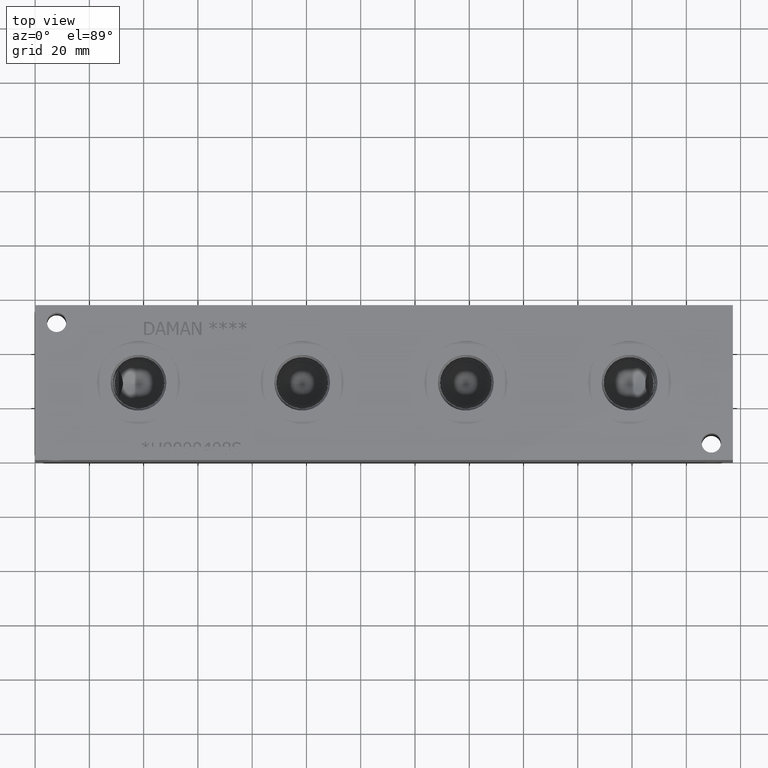
[diagram: clean part render]
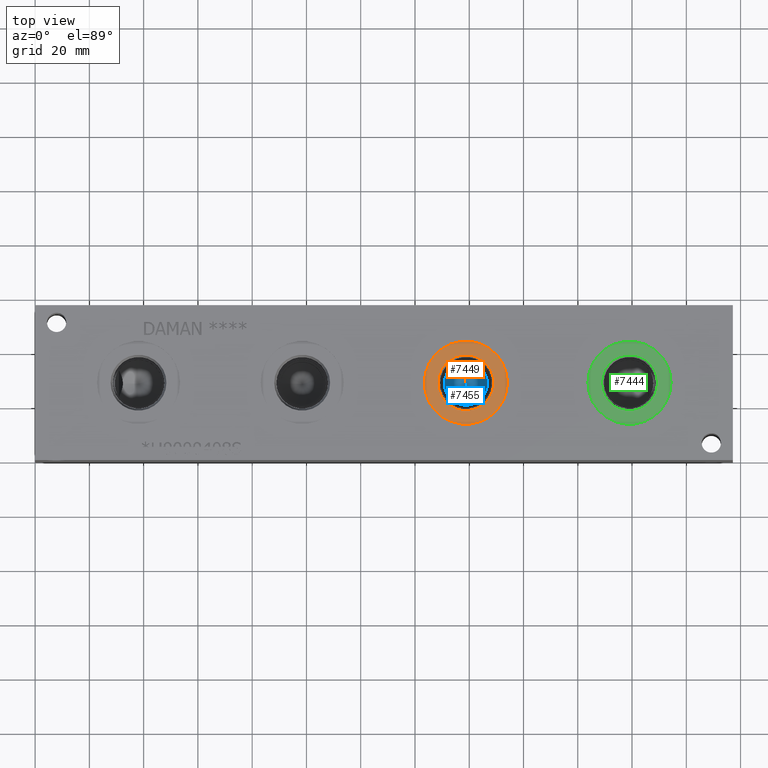
[diagram: same view with three faces highlighted in distinct colors, each labeled with its STEP entity id]
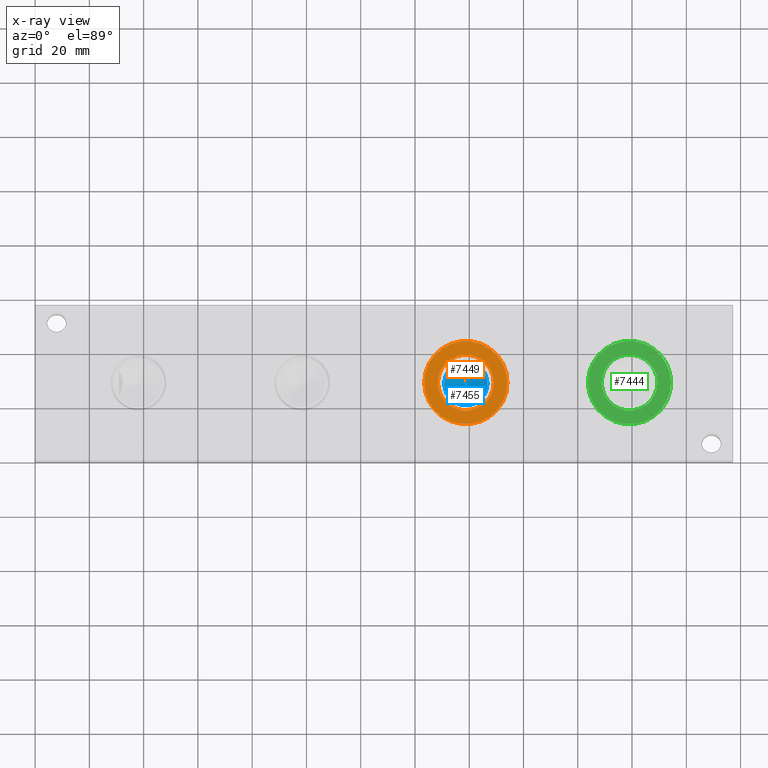
[diagram: x-ray of the same camera — body ghosted, the three highlighted faces saturated]
A machine part, top view with three faces highlighted in distinct colors.
The next image is the same camera in x-ray (body ghosted, the three faces saturated) — at least one of them is partly hidden behind the body in this view.
Their STEP definitions:

[orange] entity #7449 — the highlighted planar face has unit normal (0, 0, -1).
#154=CIRCLE('',#7824,15.3162);
#155=CIRCLE('',#7825,15.3162);
#156=CIRCLE('',#7827,10.2997);
#157=CIRCLE('',#7828,10.2997);
#242=FACE_BOUND('',#1246,.T.);
#465=PLANE('',#7826);
#822=FACE_OUTER_BOUND('',#1245,.T.);
#1245=EDGE_LOOP('',(#6516,#6517));
#1246=EDGE_LOOP('',(#6518,#6519));
#3540=VERTEX_POINT('',#12759);
#3541=VERTEX_POINT('',#12761);
#3542=VERTEX_POINT('',#12765);
#3543=VERTEX_POINT('',#12766);
#4552=EDGE_CURVE('',#3540,#3541,#154,.T.);
#4553=EDGE_CURVE('',#3541,#3540,#155,.T.);
#4554=EDGE_CURVE('',#3542,#3543,#156,.T.);
#4555=EDGE_CURVE('',#3543,#3542,#157,.T.);
#6516=ORIENTED_EDGE('',*,*,#4553,.F.);
#6517=ORIENTED_EDGE('',*,*,#4552,.F.);
#6518=ORIENTED_EDGE('',*,*,#4554,.T.);
#6519=ORIENTED_EDGE('',*,*,#4555,.T.);
#7449=ADVANCED_FACE('',(#822,#242),#465,.F.);
#7824=AXIS2_PLACEMENT_3D('',#12762,#9216,#9217);
#7825=AXIS2_PLACEMENT_3D('',#12763,#9218,#9219);
#7826=AXIS2_PLACEMENT_3D('',#12764,#9220,#9221);
#7827=AXIS2_PLACEMENT_3D('',#12767,#9222,#9223);
#7828=AXIS2_PLACEMENT_3D('',#12768,#9224,#9225);
#9216=DIRECTION('center_axis',(0.,0.,-1.));
#9217=DIRECTION('ref_axis',(1.,0.,0.));
#9218=DIRECTION('center_axis',(0.,0.,-1.));
#9219=DIRECTION('ref_axis',(1.,0.,0.));
#9220=DIRECTION('center_axis',(0.,0.,-1.));
#9221=DIRECTION('ref_axis',(-1.,0.,0.));
#9222=DIRECTION('center_axis',(0.,0.,-1.));
#9223=DIRECTION('ref_axis',(1.,0.,0.));
#9224=DIRECTION('center_axis',(0.,0.,-1.));
#9225=DIRECTION('ref_axis',(1.,0.,0.));
#12759=CARTESIAN_POINT('',(143.4338,28.575,56.3626));
#12761=CARTESIAN_POINT('',(174.0662,28.575,56.3626));
#12762=CARTESIAN_POINT('Origin',(158.75,28.575,56.3626));
#12763=CARTESIAN_POINT('Origin',(158.75,28.575,56.3626));
#12764=CARTESIAN_POINT('Origin',(169.0497,28.575,56.3626));
#12765=CARTESIAN_POINT('',(169.0497,28.575,56.3626));
#12766=CARTESIAN_POINT('',(148.4503,28.575,56.3626));
#12767=CARTESIAN_POINT('Origin',(158.75,28.575,56.3626));
#12768=CARTESIAN_POINT('Origin',(158.75,28.575,56.3626));

[blue] entity #7455 — the highlighted conical surface has half-angle 60 deg.
#27=CONICAL_SURFACE('',#7842,3.96875,1.0471975511966);
#166=CIRCLE('',#7843,7.9375);
#167=CIRCLE('',#7844,7.9375);
#828=FACE_OUTER_BOUND('',#1252,.T.);
#1252=EDGE_LOOP('',(#6546,#6547,#6548,#6549));
#1962=LINE('',#12801,#2654);
#2654=VECTOR('',#9261,3.96875);
#3553=VERTEX_POINT('',#12797);
#3554=VERTEX_POINT('',#12798);
#3555=VERTEX_POINT('',#12800);
#4569=EDGE_CURVE('',#3553,#3554,#166,.T.);
#4570=EDGE_CURVE('',#3554,#3555,#1962,.T.);
#4571=EDGE_CURVE('',#3554,#3553,#167,.T.);
#6546=ORIENTED_EDGE('',*,*,#4569,.T.);
#6547=ORIENTED_EDGE('',*,*,#4570,.T.);
#6548=ORIENTED_EDGE('',*,*,#4570,.F.);
#6549=ORIENTED_EDGE('',*,*,#4571,.T.);
#7455=ADVANCED_FACE('',(#828),#27,.F.);
#7842=AXIS2_PLACEMENT_3D('',#12796,#9257,#9258);
#7843=AXIS2_PLACEMENT_3D('',#12799,#9259,#9260);
#7844=AXIS2_PLACEMENT_3D('',#12802,#9262,#9263);
#9257=DIRECTION('center_axis',(0.,0.,1.));
#9258=DIRECTION('ref_axis',(1.,0.,0.));
#9259=DIRECTION('center_axis',(0.,0.,1.));
#9260=DIRECTION('ref_axis',(1.,0.,0.));
#9261=DIRECTION('',(0.866025403784439,1.06057523872491E-16,-0.5));
#9262=DIRECTION('center_axis',(0.,0.,1.));
#9263=DIRECTION('ref_axis',(1.,0.,0.));
#12796=CARTESIAN_POINT('Origin',(158.75,28.575,31.6260411191537));
#12797=CARTESIAN_POINT('',(166.6875,28.575,33.9174));
#12798=CARTESIAN_POINT('',(150.8125,28.575,33.9174));
#12799=CARTESIAN_POINT('Origin',(158.75,28.575,33.9174));
#12800=CARTESIAN_POINT('',(158.75,28.575,29.3346822383073));
#12801=CARTESIAN_POINT('',(154.78125,28.575,31.6260411191537));
#12802=CARTESIAN_POINT('Origin',(158.75,28.575,33.9174));

[green] entity #7444 — the highlighted planar face has unit normal (0, 0, -1).
#145=CIRCLE('',#7810,15.3162);
#146=CIRCLE('',#7811,15.3162);
#147=CIRCLE('',#7813,10.2997);
#148=CIRCLE('',#7814,10.2997);
#241=FACE_BOUND('',#1240,.T.);
#464=PLANE('',#7812);
#817=FACE_OUTER_BOUND('',#1239,.T.);
#1239=EDGE_LOOP('',(#6489,#6490));
#1240=EDGE_LOOP('',(#6491,#6492));
#3531=VERTEX_POINT('',#12732);
#3532=VERTEX_POINT('',#12734);
#3533=VERTEX_POINT('',#12738);
#3534=VERTEX_POINT('',#12739);
#4539=EDGE_CURVE('',#3531,#3532,#145,.T.);
#4540=EDGE_CURVE('',#3532,#3531,#146,.T.);
#4541=EDGE_CURVE('',#3533,#3534,#147,.T.);
#4542=EDGE_CURVE('',#3534,#3533,#148,.T.);
#6489=ORIENTED_EDGE('',*,*,#4540,.F.);
#6490=ORIENTED_EDGE('',*,*,#4539,.F.);
#6491=ORIENTED_EDGE('',*,*,#4541,.T.);
#6492=ORIENTED_EDGE('',*,*,#4542,.T.);
#7444=ADVANCED_FACE('',(#817,#241),#464,.F.);
#7810=AXIS2_PLACEMENT_3D('',#12735,#9184,#9185);
#7811=AXIS2_PLACEMENT_3D('',#12736,#9186,#9187);
#7812=AXIS2_PLACEMENT_3D('',#12737,#9188,#9189);
#7813=AXIS2_PLACEMENT_3D('',#12740,#9190,#9191);
#7814=AXIS2_PLACEMENT_3D('',#12741,#9192,#9193);
#9184=DIRECTION('center_axis',(0.,0.,-1.));
#9185=DIRECTION('ref_axis',(1.,0.,0.));
#9186=DIRECTION('center_axis',(0.,0.,-1.));
#9187=DIRECTION('ref_axis',(1.,0.,0.));
#9188=DIRECTION('center_axis',(0.,0.,-1.));
#9189=DIRECTION('ref_axis',(-1.,0.,0.));
#9190=DIRECTION('center_axis',(0.,0.,-1.));
#9191=DIRECTION('ref_axis',(1.,0.,0.));
#9192=DIRECTION('center_axis',(0.,0.,-1.));
#9193=DIRECTION('ref_axis',(1.,0.,0.));
#12732=CARTESIAN_POINT('',(203.7588,28.575,56.3626));
#12734=CARTESIAN_POINT('',(234.3912,28.575,56.3626));
#12735=CARTESIAN_POINT('Origin',(219.075,28.575,56.3626));
#12736=CARTESIAN_POINT('Origin',(219.075,28.575,56.3626));
#12737=CARTESIAN_POINT('Origin',(229.3747,28.575,56.3626));
#12738=CARTESIAN_POINT('',(229.3747,28.575,56.3626));
#12739=CARTESIAN_POINT('',(208.7753,28.575,56.3626));
#12740=CARTESIAN_POINT('Origin',(219.075,28.575,56.3626));
#12741=CARTESIAN_POINT('Origin',(219.075,28.575,56.3626));